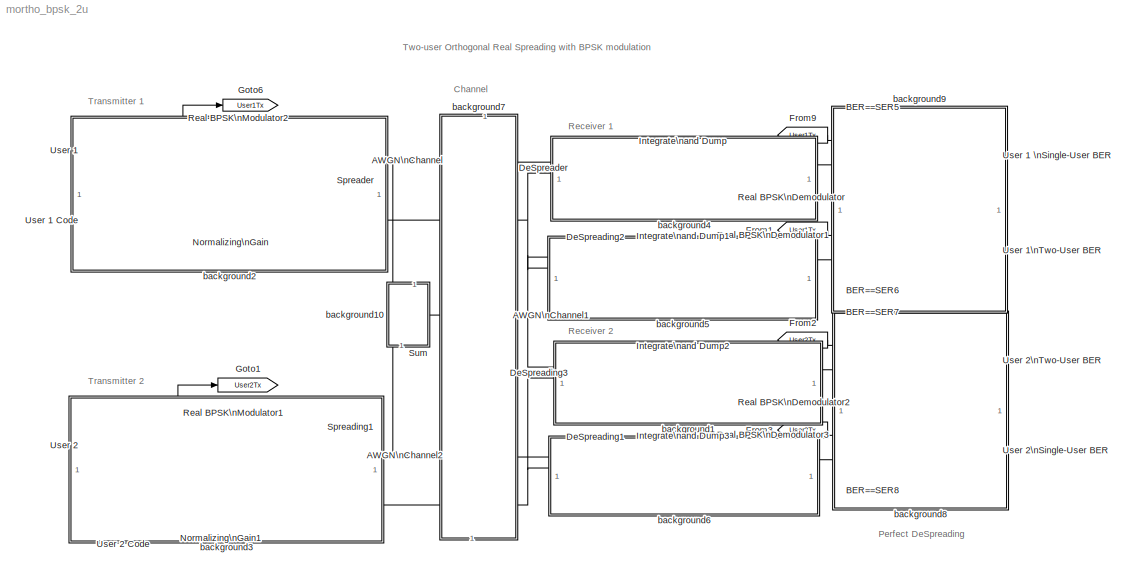
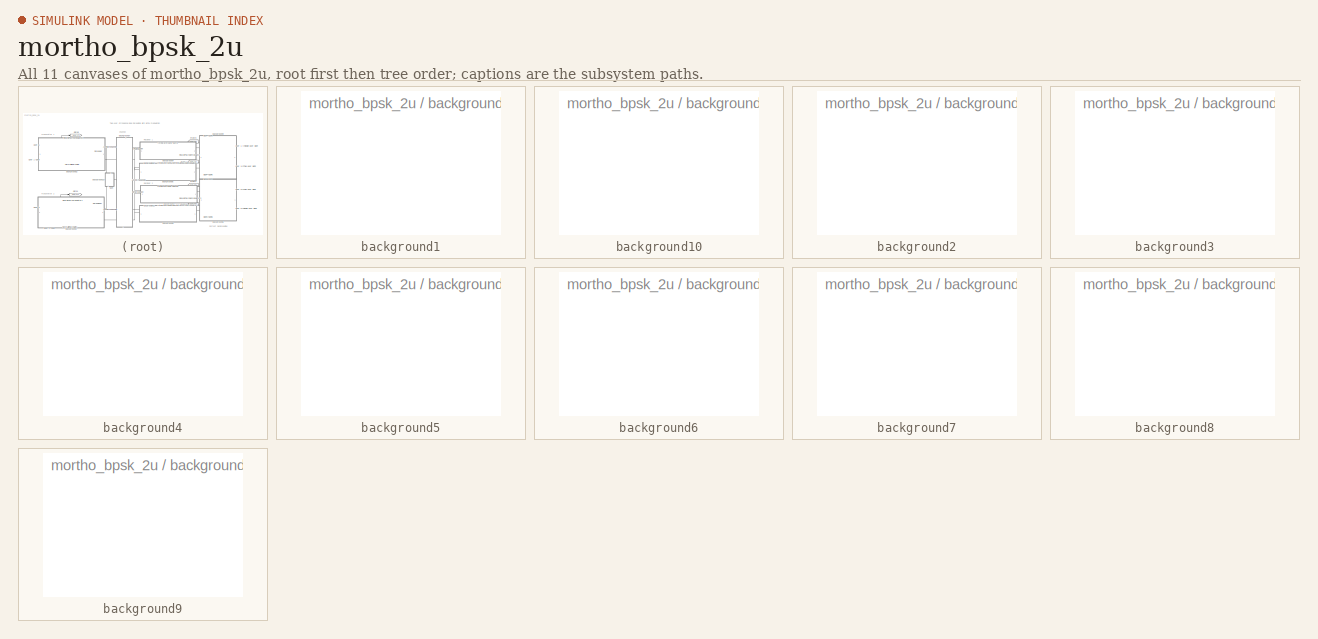
[diagram: thumbnail index - all 11 canvases of the model, root first then tree order]
MODEL mortho_bpsk_2u
KIND model
BLOCK [Reference] AWGN\nChannel  REF=commchan2/AWGN\nChannel
  EbNodB = 10
  EsNodB = 25
  Ports = [1, 1]
  Ps = 1
  SNRdB = 5
  ShowPortLabels = on
  SourceBlock = commchan2/AWGN\nChannel
  SourceType = AWGN Channel
  Tsym = ts
  bitsPerSym = 1
  noiseMode = Signal to noise ratio  (SNR)
  seed = 1237
  variance = 1
BLOCK [Reference] AWGN\nChannel1  REF=commchan2/AWGN\nChannel
  EbNodB = 10
  EsNodB = 25
  Ports = [1, 1]
  Ps = 1
  SNRdB = 5
  ShowPortLabels = on
  SourceBlock = commchan2/AWGN\nChannel
  SourceType = AWGN Channel
  Tsym = ts
  bitsPerSym = 1
  noiseMode = Signal to noise ratio  (SNR)
  seed = 1237
  variance = 1
BLOCK [Reference] AWGN\nChannel2  REF=commchan2/AWGN\nChannel
  EbNodB = 10
  EsNodB = 25
  Ports = [1, 1]
  Ps = 1
  SNRdB = 5
  ShowPortLabels = on
  SourceBlock = commchan2/AWGN\nChannel
  SourceType = AWGN Channel
  Tsym = ts
  bitsPerSym = 1
  noiseMode = Signal to noise ratio  (SNR)
  seed = 1237
  variance = 1
BLOCK [Reference] BER==SER5  REF=commsink2/Error Rate\nCalculation
  N = 0
  PMode = Port
  Ports = [2, 1]
  RsMode2 = off
  SourceBlock = commsink2/Error Rate\nCalculation
  SourceType = Error Rate Calculation
  WsName = ErrorVec
  cp_mode = Entire frame
  maxBits = 1e6
  numErr = 100
  st_delay = 0
  stop = off
  subframe = []
BLOCK [Reference] BER==SER6  REF=commsink2/Error Rate\nCalculation
  N = 0
  PMode = Port
  Ports = [2, 1]
  RsMode2 = off
  SourceBlock = commsink2/Error Rate\nCalculation
  SourceType = Error Rate Calculation
  WsName = ErrorVec
  cp_mode = Entire frame
  maxBits = 1e6
  numErr = 100
  st_delay = 0
  stop = off
  subframe = []
BLOCK [Reference] BER==SER7  REF=commsink2/Error Rate\nCalculation
  N = 0
  PMode = Port
  Ports = [2, 1]
  RsMode2 = off
  SourceBlock = commsink2/Error Rate\nCalculation
  SourceType = Error Rate Calculation
  WsName = ErrorVec
  cp_mode = Entire frame
  maxBits = 1e6
  numErr = 100
  st_delay = 0
  stop = off
  subframe = []
BLOCK [Reference] BER==SER8  REF=commsink2/Error Rate\nCalculation
  N = 0
  PMode = Port
  Ports = [2, 1]
  RsMode2 = off
  SourceBlock = commsink2/Error Rate\nCalculation
  SourceType = Error Rate Calculation
  WsName = ErrorVec
  cp_mode = Entire frame
  maxBits = 1e6
  numErr = 100
  st_delay = 0
  stop = off
  subframe = []
BLOCK [Product] DeSpreader
  Ports = [2, 1]
  RndMeth = Floor
BLOCK [Product] DeSpreading1
  Ports = [2, 1]
  RndMeth = Floor
BLOCK [Product] DeSpreading2
  Ports = [2, 1]
  RndMeth = Floor
BLOCK [Product] DeSpreading3
  Ports = [2, 1]
  RndMeth = Floor
BLOCK [From] From1
  CloseFcn = tagdialog Close
  GotoTag = User1Tx
BLOCK [From] From2
  CloseFcn = tagdialog Close
  GotoTag = User2Tx
BLOCK [From] From3
  CloseFcn = tagdialog Close
  GotoTag = User2Tx
BLOCK [From] From9
  CloseFcn = tagdialog Close
  GotoTag = User1Tx
BLOCK [Goto] Goto1
  GotoTag = User2Tx
  TagVisibility = global
BLOCK [Goto] Goto6
  GotoTag = User1Tx
  TagVisibility = global
BLOCK [Reference] Integrate\nand Dump  REF=commfilt2/Integrate\nand Dump
  Ports = [1, 1]
  SourceBlock = commfilt2/Integrate\nand Dump
  SourceType = Integrate and dump
  nodump = off
  obssamples = 64
  offsetsamples = 0
BLOCK [Reference] Integrate\nand Dump1  REF=commfilt2/Integrate\nand Dump
  Ports = [1, 1]
  SourceBlock = commfilt2/Integrate\nand Dump
  SourceType = Integrate and dump
  nodump = off
  obssamples = 64
  offsetsamples = 0
BLOCK [Reference] Integrate\nand Dump2  REF=commfilt2/Integrate\nand Dump
  Ports = [1, 1]
  SourceBlock = commfilt2/Integrate\nand Dump
  SourceType = Integrate and dump
  nodump = off
  obssamples = 64
  offsetsamples = 0
BLOCK [Reference] Integrate\nand Dump3  REF=commfilt2/Integrate\nand Dump
  Ports = [1, 1]
  SourceBlock = commfilt2/Integrate\nand Dump
  SourceType = Integrate and dump
  nodump = off
  obssamples = 64
  offsetsamples = 0
BLOCK [Gain] Normalizing\nGain
  Gain = 1/sqrt(64)
BLOCK [Gain] Normalizing\nGain1
  Gain = 1/sqrt(64)
BLOCK [Reference] Real BPSK\nDemodulator  REF=mspread/Real BPSK\nDemodulator  (lib defined in mdl_3dcc25b7f51f)
  Ports = [1, 1]
  ShowPortLabels = on
  SourceBlock = mspread/Real BPSK\nDemodulator
  SourceType = Real BPSK Demodulator
BLOCK [Reference] Real BPSK\nDemodulator1  REF=mspread/Real BPSK\nDemodulator  (lib defined in mdl_3dcc25b7f51f)
  Ports = [1, 1]
  ShowPortLabels = on
  SourceBlock = mspread/Real BPSK\nDemodulator
  SourceType = Real BPSK Demodulator
BLOCK [Reference] Real BPSK\nDemodulator2  REF=mspread/Real BPSK\nDemodulator  (lib defined in mdl_3dcc25b7f51f)
  Ports = [1, 1]
  ShowPortLabels = on
  SourceBlock = mspread/Real BPSK\nDemodulator
  SourceType = Real BPSK Demodulator
BLOCK [Reference] Real BPSK\nDemodulator3  REF=mspread/Real BPSK\nDemodulator  (lib defined in mdl_3dcc25b7f51f)
  Ports = [1, 1]
  ShowPortLabels = on
  SourceBlock = mspread/Real BPSK\nDemodulator
  SourceType = Real BPSK Demodulator
BLOCK [Reference] Real BPSK\nModulator1  REF=mspread/Real BPSK\nModulator  (lib defined in mdl_3dcc25b7f51f)
  Ports = [1, 1]
  ShowPortLabels = on
  SourceBlock = mspread/Real BPSK\nModulator
  SourceType = Real BPSK Modulator
BLOCK [Reference] Real BPSK\nModulator2  REF=mspread/Real BPSK\nModulator  (lib defined in mdl_3dcc25b7f51f)
  Ports = [1, 1]
  ShowPortLabels = on
  SourceBlock = mspread/Real BPSK\nModulator
  SourceType = Real BPSK Modulator
BLOCK [Product] Spreader
  Ports = [2, 1]
  RndMeth = Floor
BLOCK [Product] Spreading1
  Ports = [2, 1]
  RndMeth = Floor
BLOCK [Sum] Sum
  InputSameDT = off
  OutDataTypeMode = Inherit via internal rule
  Ports = [2, 1]
BLOCK [Reference] User 1  REF=commrandsrc2/Random Integer\nGenerator
  Ports = [0, 1]
  ShowPortLabels = on
  SourceBlock = commrandsrc2/Random Integer\nGenerator
  SourceType = Random Integer Generator
  Ts = 1/19200
  frameBased = on
  mul = 2
  orient = off
  sampPerFrame = 1
  seed = 37
BLOCK [Reference] User 1 Code   REF=commseqgen2/Hadamard\nCode Generator
  Ports = [0, 1]
  ShowPortLabels = on
  SourceBlock = commseqgen2/Hadamard\nCode Generator
  SourceType = Hadamard Code Generator
  frameBased = on
  index = 60
  length = 64
  sampPerFrame = 64
  ts = 1/(19200*64)
BLOCK [Display] User 1 \nSingle-User BER
  Decimation = 1
  Ports = [1]
BLOCK [Display] User 1\nTwo-User BER 
  Decimation = 1
  Ports = [1]
BLOCK [Reference] User 2  REF=commrandsrc2/Random Integer\nGenerator
  Ports = [0, 1]
  ShowPortLabels = on
  SourceBlock = commrandsrc2/Random Integer\nGenerator
  SourceType = Random Integer Generator
  Ts = 1/19200
  frameBased = on
  mul = 2
  orient = off
  sampPerFrame = 1
  seed = 631
BLOCK [Reference] User 2 Code  REF=commseqgen2/Hadamard\nCode Generator
  Ports = [0, 1]
  ShowPortLabels = on
  SourceBlock = commseqgen2/Hadamard\nCode Generator
  SourceType = Hadamard Code Generator
  frameBased = on
  index = 30
  length = 64
  sampPerFrame = 64
  ts = 1/(19200*64)
BLOCK [Display] User 2\nSingle-User BER 
  Decimation = 1
  Ports = [1]
BLOCK [Display] User 2\nTwo-User BER
  Decimation = 1
  Ports = [1]
BLOCK [SubSystem] background1
  MaskDisplay = disp('')
  MaskIconFrame = on
  MaskIconOpaque = on
  MaskIconRotate = none
  MaskIconUnits = autoscale
  Ports = []
  TreatAsAtomicUnit = off
BLOCK [SubSystem] background10
  MaskDisplay = disp('')
  MaskIconFrame = on
  MaskIconOpaque = on
  MaskIconRotate = none
  MaskIconUnits = autoscale
  Ports = []
  TreatAsAtomicUnit = off
BLOCK [SubSystem] background2
  MaskDisplay = disp('')
  MaskIconFrame = on
  MaskIconOpaque = on
  MaskIconRotate = none
  MaskIconUnits = autoscale
  Ports = []
  TreatAsAtomicUnit = off
BLOCK [SubSystem] background3
  MaskDisplay = disp('')
  MaskIconFrame = on
  MaskIconOpaque = on
  MaskIconRotate = none
  MaskIconUnits = autoscale
  Ports = []
  TreatAsAtomicUnit = off
BLOCK [SubSystem] background4
  MaskDisplay = disp('')
  MaskIconFrame = on
  MaskIconOpaque = on
  MaskIconRotate = none
  MaskIconUnits = autoscale
  Ports = []
  TreatAsAtomicUnit = off
BLOCK [SubSystem] background5
  MaskDisplay = disp('')
  MaskIconFrame = on
  MaskIconOpaque = on
  MaskIconRotate = none
  MaskIconUnits = autoscale
  Ports = []
  TreatAsAtomicUnit = off
BLOCK [SubSystem] background6
  MaskDisplay = disp('')
  MaskIconFrame = on
  MaskIconOpaque = on
  MaskIconRotate = none
  MaskIconUnits = autoscale
  Ports = []
  TreatAsAtomicUnit = off
BLOCK [SubSystem] background7
  MaskDisplay = disp('')
  MaskIconFrame = on
  MaskIconOpaque = on
  MaskIconRotate = none
  MaskIconUnits = autoscale
  Ports = []
  TreatAsAtomicUnit = off
BLOCK [SubSystem] background8
  MaskDisplay = disp('')
  MaskIconFrame = on
  MaskIconOpaque = on
  MaskIconRotate = none
  MaskIconUnits = autoscale
  Ports = []
  TreatAsAtomicUnit = off
BLOCK [SubSystem] background9
  MaskDisplay = disp('')
  MaskIconFrame = on
  MaskIconOpaque = on
  MaskIconRotate = none
  MaskIconUnits = autoscale
  Ports = []
  TreatAsAtomicUnit = off
ANNOTATION (root): Channel
ANNOTATION (root): Perfect DeSpreading
ANNOTATION (root): Receiver 1
ANNOTATION (root): Receiver 2
ANNOTATION (root): Transmitter 1
ANNOTATION (root): Transmitter 2
ANNOTATION (root): Two-user Orthogonal Real Spreading with BPSK modulation
NET AWGN\nChannel1:1 -> DeSpreading2:1, DeSpreading3:1
LINE AWGN\nChannel2:1 -> DeSpreading1:1
LINE AWGN\nChannel:1 -> DeSpreader:1
LINE BER==SER5:1 -> User 1 \nSingle-User BER:1
LINE BER==SER6:1 -> User 1\nTwo-User BER :1
LINE BER==SER7:1 -> User 2\nTwo-User BER:1
LINE BER==SER8:1 -> User 2\nSingle-User BER :1
LINE DeSpreader:1 -> Integrate\nand Dump:1
LINE DeSpreading1:1 -> Integrate\nand Dump3:1
LINE DeSpreading2:1 -> Integrate\nand Dump1:1
LINE DeSpreading3:1 -> Integrate\nand Dump2:1
LINE From1:1 -> BER==SER6:1
LINE From2:1 -> BER==SER7:1
LINE From3:1 -> BER==SER8:1
LINE From9:1 -> BER==SER5:1
LINE Integrate\nand Dump1:1 -> Real BPSK\nDemodulator1:1
LINE Integrate\nand Dump2:1 -> Real BPSK\nDemodulator2:1
LINE Integrate\nand Dump3:1 -> Real BPSK\nDemodulator3:1
LINE Integrate\nand Dump:1 -> Real BPSK\nDemodulator:1
NET Normalizing\nGain1:1 -> DeSpreading1:2, DeSpreading3:2, Spreading1:2
NET Normalizing\nGain:1 -> DeSpreader:2, DeSpreading2:2, Spreader:2
LINE Real BPSK\nDemodulator1:1 -> BER==SER6:2
LINE Real BPSK\nDemodulator2:1 -> BER==SER7:2
LINE Real BPSK\nDemodulator3:1 -> BER==SER8:2
LINE Real BPSK\nDemodulator:1 -> BER==SER5:2
LINE Real BPSK\nModulator1:1 -> Spreading1:1
LINE Real BPSK\nModulator2:1 -> Spreader:1
NET Spreader:1 -> AWGN\nChannel:1, Sum:1
NET Spreading1:1 -> AWGN\nChannel2:1, Sum:2
LINE Sum:1 -> AWGN\nChannel1:1
LINE User 1 Code :1 -> Normalizing\nGain:1
NET User 1:1 -> Goto6:1, Real BPSK\nModulator2:1
LINE User 2 Code:1 -> Normalizing\nGain1:1
NET User 2:1 -> Goto1:1, Real BPSK\nModulator1:1
note: NET lines group one-source signal fan-out (src -> all destinations, sorted); 1:1 wires keep LINE
